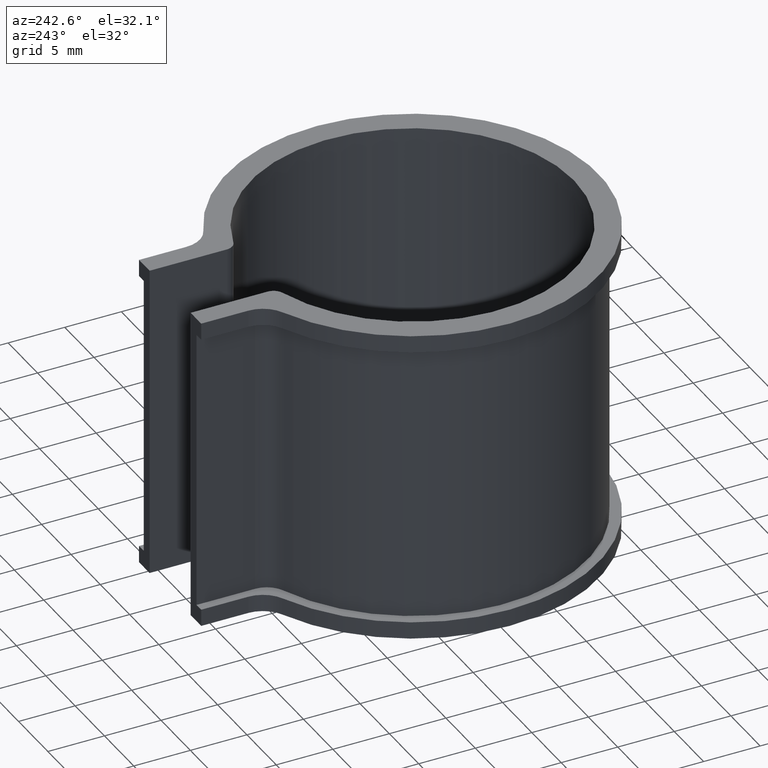
[diagram: clean part render]
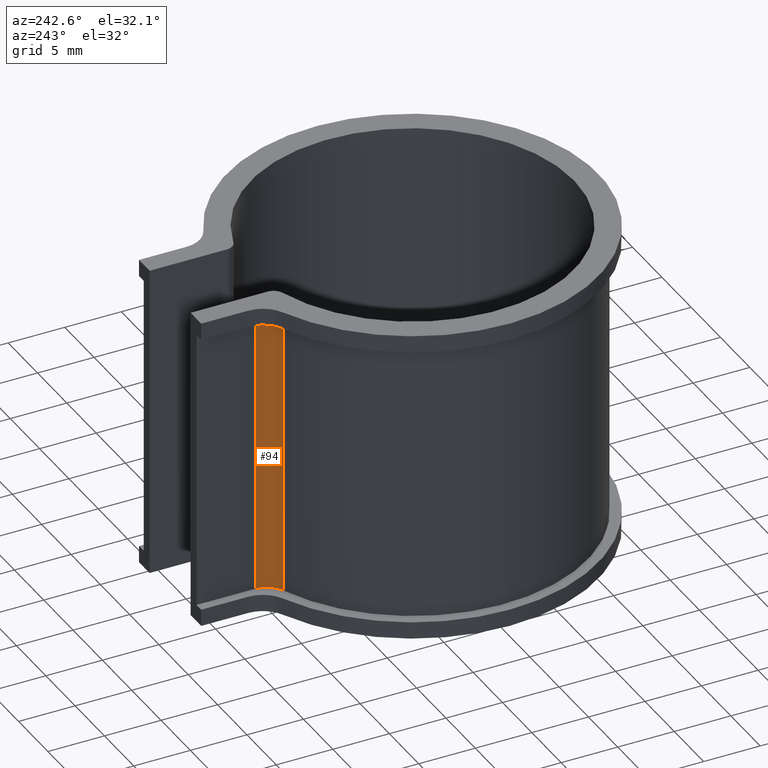
[diagram: same view with one face highlighted and labeled with its STEP entity id]
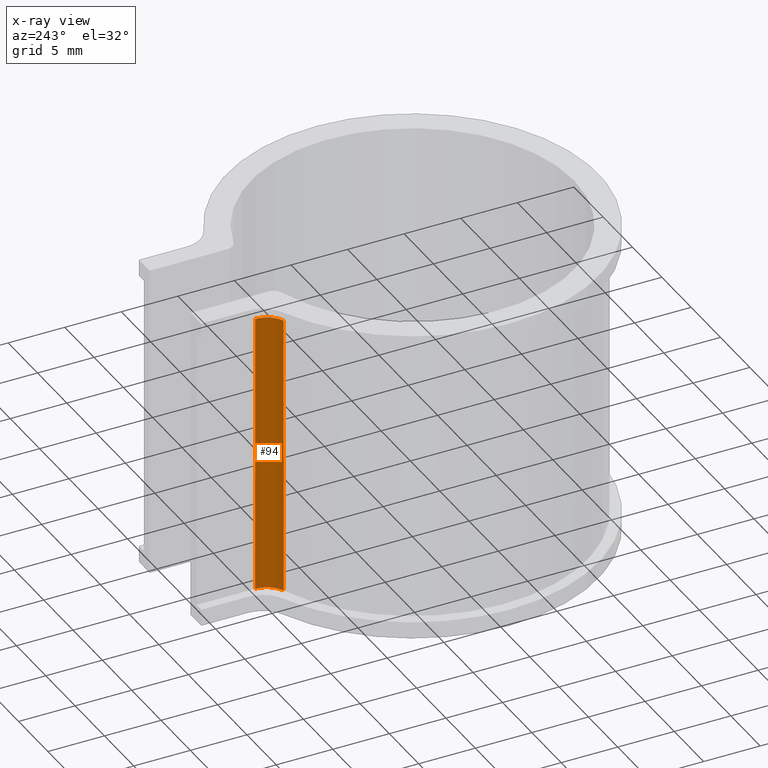
[diagram: x-ray of the same camera — body ghosted, the highlighted face saturated]
A machine part, auxiliary view. The second image highlights one B-rep face of the part: STEP entity #94.
The next image is the same camera in x-ray: the body ghosted, the highlighted face saturated — about 0% of this face is hidden behind the body in this view.
In plain terms, the highlighted cylindrical surface (edge-blend (fillet) strip) has radius 2 mm, axis along (0, 0, -1).
Its self-contained STEP definition (entity closure, byte-faithful):
#94 = ADVANCED_FACE( '', ( #140 ), #141, .F. );
#140 = FACE_OUTER_BOUND( '', #192, .T. );
#141 = CYLINDRICAL_SURFACE( '', #193, 2.00000000000000 );
#192 = EDGE_LOOP( '', ( #379, #380, #381, #382 ) );
#193 = AXIS2_PLACEMENT_3D( '', #383, #384, #385 );
#379 = ORIENTED_EDGE( '', *, *, #433, .F. );
#380 = ORIENTED_EDGE( '', *, *, #497, .F. );
#381 = ORIENTED_EDGE( '', *, *, #455, .F. );
#382 = ORIENTED_EDGE( '', *, *, #453, .F. );
#383 = CARTESIAN_POINT( '', ( -6.50000000000000, 16.2373058110020, -25.0000000000000 ) );
#384 = DIRECTION( '', ( 0.000000000000000, 0.000000000000000, -1.00000000000000 ) );
#385 = DIRECTION( '', ( 1.00000000000000, 0.000000000000000, 0.000000000000000 ) );
#433 = EDGE_CURVE( '', #508, #511, #512, .T. );
#453 = EDGE_CURVE( '', #511, #548, #549, .F. );
#455 = EDGE_CURVE( '', #548, #551, #552, .F. );
#497 = EDGE_CURVE( '', #551, #508, #617, .F. );
#508 = VERTEX_POINT( '', #632 );
#511 = VERTEX_POINT( '', #635 );
#512 = CIRCLE( '', #636, 2.00000000000000 );
#548 = VERTEX_POINT( '', #687 );
#549 = LINE( '', #688, #689 );
#551 = VERTEX_POINT( '', #692 );
#552 = CIRCLE( '', #693, 2.00000000000000 );
#617 = LINE( '', #782, #783 );
#632 = CARTESIAN_POINT( '', ( -5.75671812464265, 14.3805527165478, -25.0000000000000 ) );
#635 = CARTESIAN_POINT( '', ( -4.50000000000000, 16.2373058110020, -25.0000000000000 ) );
#636 = AXIS2_PLACEMENT_3D( '', #795, #796, #797 );
#687 = CARTESIAN_POINT( '', ( -4.50000000000000, 16.2373058110020, 0.000000000000000 ) );
#688 = CARTESIAN_POINT( '', ( -4.50000000000000, 16.2373058110020, 0.000000000000000 ) );
#689 = VECTOR( '', #825, 1000.00000000000 );
#692 = CARTESIAN_POINT( '', ( -5.75671812464265, 14.3805527165478, 0.000000000000000 ) );
#693 = AXIS2_PLACEMENT_3D( '', #827, #828, #829 );
#782 = CARTESIAN_POINT( '', ( -5.75671812464265, 14.3805527165478, -25.0000000000000 ) );
#783 = VECTOR( '', #905, 1000.00000000000 );
#795 = CARTESIAN_POINT( '', ( -6.50000000000000, 16.2373058110020, -25.0000000000000 ) );
#796 = DIRECTION( '', ( 0.000000000000000, 0.000000000000000, 1.00000000000000 ) );
#797 = DIRECTION( '', ( 1.00000000000000, 0.000000000000000, 0.000000000000000 ) );
#825 = DIRECTION( '', ( 0.000000000000000, 0.000000000000000, -1.00000000000000 ) );
#827 = CARTESIAN_POINT( '', ( -6.50000000000000, 16.2373058110020, 0.000000000000000 ) );
#828 = DIRECTION( '', ( 0.000000000000000, 0.000000000000000, 1.00000000000000 ) );
#829 = DIRECTION( '', ( 1.00000000000000, 0.000000000000000, 0.000000000000000 ) );
#905 = DIRECTION( '', ( 0.000000000000000, 0.000000000000000, 1.00000000000000 ) );